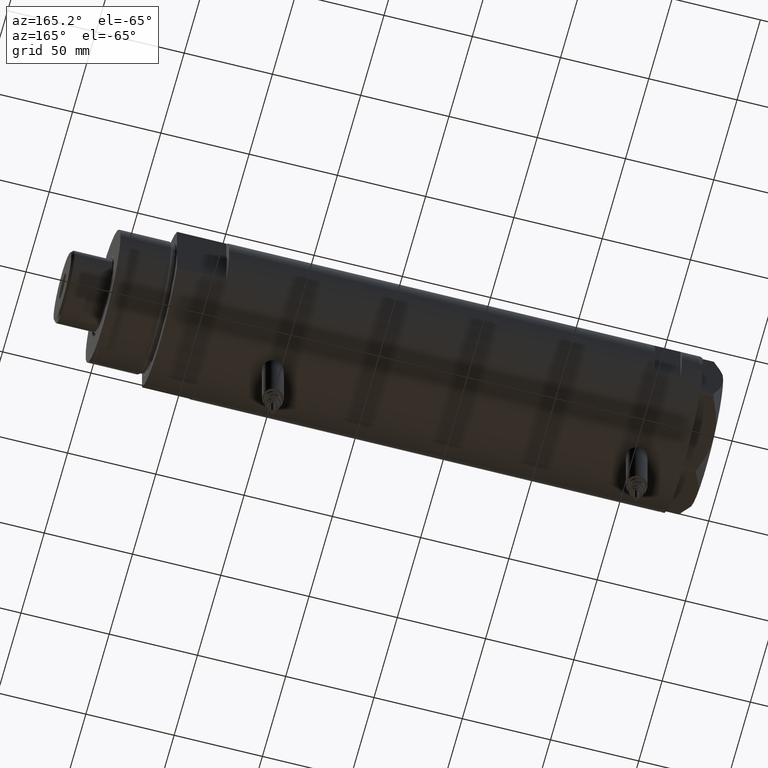
[diagram: clean part render]
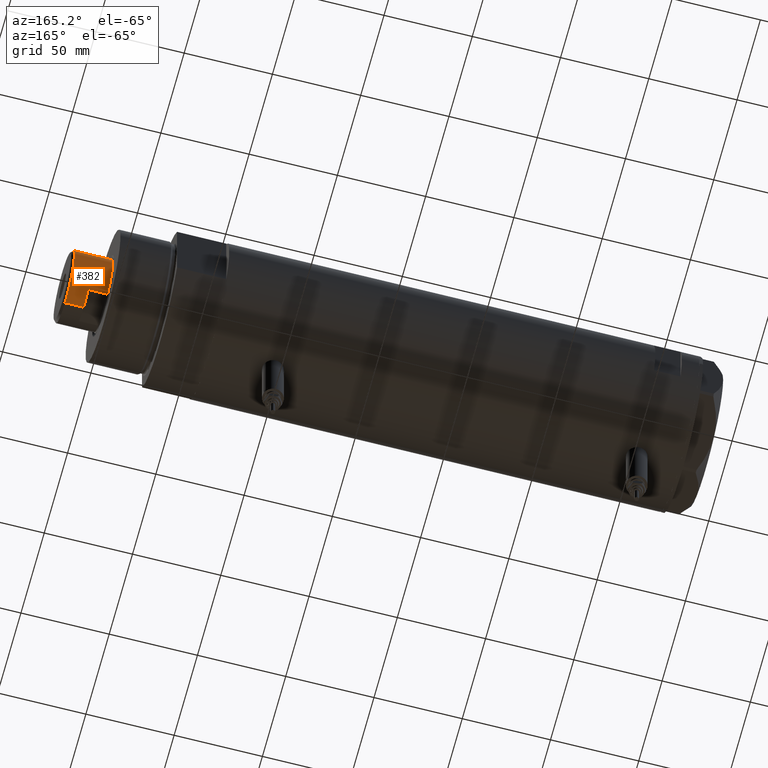
[diagram: same view with one face highlighted and labeled with its STEP entity id]
A machine part, auxiliary view. The second image highlights one B-rep face of the part: STEP entity #382.
In plain terms, the highlighted cylindrical surface (partial cylindrical patch) has radius 20.5 mm, axis along (-1, -0, 0).
Its self-contained STEP definition (entity closure, byte-faithful):
#221 = CARTESIAN_POINT ( 'NONE',  ( -20.50000000000000000, 0.000000000000000000, 311.3000000000000114 ) ) ;
#382 = ADVANCED_FACE ( 'NONE', ( #5927 ), #727, .T. ) ;
#384 = EDGE_CURVE ( 'NONE', #3918, #517, #4501, .T. ) ;
#401 = VECTOR ( 'NONE', #3118, 1000.000000000000000 ) ;
#409 = CARTESIAN_POINT ( 'NONE',  ( 20.50000000000000355, 2.510525938252074481E-15, 321.9000000000000909 ) ) ;
#484 = VERTEX_POINT ( 'NONE', #5895 ) ;
#517 = VERTEX_POINT ( 'NONE', #1660 ) ;
#539 = DIRECTION ( 'NONE',  ( 1.000000000000000000, 0.000000000000000000, 0.000000000000000000 ) ) ;
#690 = EDGE_CURVE ( 'NONE', #3674, #4470, #2450, .T. ) ;
#727 = CYLINDRICAL_SURFACE ( 'NONE', #2049, 20.50000000000000355 ) ;
#738 = ORIENTED_EDGE ( 'NONE', *, *, #5622, .F. ) ;
#752 = EDGE_LOOP ( 'NONE', ( #5594, #4460, #5274, #4856, #1556, #738, #5767, #2223 ) ) ;
#835 = DIRECTION ( 'NONE',  ( 0.000000000000000000, 0.000000000000000000, 1.000000000000000000 ) ) ;
#1249 = EDGE_CURVE ( 'NONE', #484, #2320, #2851, .T. ) ;
#1309 = CIRCLE ( 'NONE', #4434, 20.50000000000000000 ) ;
#1355 = CARTESIAN_POINT ( 'NONE',  ( 0.000000000000000000, 0.000000000000000000, 321.9000000000000909 ) ) ;
#1370 = DIRECTION ( 'NONE',  ( -0.000000000000000000, -0.000000000000000000, -1.000000000000000000 ) ) ;
#1384 = CARTESIAN_POINT ( 'NONE',  ( 0.000000000000000000, 0.000000000000000000, 311.3000000000000114 ) ) ;
#1556 = ORIENTED_EDGE ( 'NONE', *, *, #1249, .T. ) ;
#1564 = DIRECTION ( 'NONE',  ( -0.000000000000000000, -0.000000000000000000, -1.000000000000000000 ) ) ;
#1660 = CARTESIAN_POINT ( 'NONE',  ( 20.50000000000000000, 2.510525938252074481E-15, 311.3000000000000114 ) ) ;
#1696 = AXIS2_PLACEMENT_3D ( 'NONE', #1355, #2327, #1928 ) ;
#1714 = CARTESIAN_POINT ( 'NONE',  ( 0.000000000000000000, 0.000000000000000000, 311.3000000000000114 ) ) ;
#1763 = VERTEX_POINT ( 'NONE', #1982 ) ;
#1783 = VECTOR ( 'NONE', #4459, 1000.000000000000000 ) ;
#1828 = CARTESIAN_POINT ( 'NONE',  ( -20.50000000000000355, 0.000000000000000000, 311.3000000000000114 ) ) ;
#1928 = DIRECTION ( 'NONE',  ( 1.000000000000000000, 0.000000000000000000, 0.000000000000000000 ) ) ;
#1982 = CARTESIAN_POINT ( 'NONE',  ( -20.50000000000000355, 0.000000000000000000, 321.9000000000000909 ) ) ;
#2046 = EDGE_CURVE ( 'NONE', #4126, #484, #4016, .T. ) ;
#2049 = AXIS2_PLACEMENT_3D ( 'NONE', #5035, #2722, #4597 ) ;
#2223 = ORIENTED_EDGE ( 'NONE', *, *, #4378, .F. ) ;
#2320 = VERTEX_POINT ( 'NONE', #3861 ) ;
#2327 = DIRECTION ( 'NONE',  ( 0.000000000000000000, 0.000000000000000000, -1.000000000000000000 ) ) ;
#2379 = CIRCLE ( 'NONE', #1696, 20.50000000000000355 ) ;
#2450 = CIRCLE ( 'NONE', #2732, 20.50000000000000000 ) ;
#2488 = LINE ( 'NONE', #3870, #4303 ) ;
#2722 = DIRECTION ( 'NONE',  ( -0.000000000000000000, -0.000000000000000000, -1.000000000000000000 ) ) ;
#2732 = AXIS2_PLACEMENT_3D ( 'NONE', #1384, #5604, #5152 ) ;
#2851 = CIRCLE ( 'NONE', #3812, 20.49999999999998934 ) ;
#3118 = DIRECTION ( 'NONE',  ( -0.000000000000000000, -0.000000000000000000, -1.000000000000000000 ) ) ;
#3547 = EDGE_CURVE ( 'NONE', #1763, #3918, #2379, .T. ) ;
#3560 = CARTESIAN_POINT ( 'NONE',  ( 17.97852886083842705, 9.849999999999997868, 311.3000000000000114 ) ) ;
#3674 = VERTEX_POINT ( 'NONE', #5219 ) ;
#3812 = AXIS2_PLACEMENT_3D ( 'NONE', #5125, #5216, #539 ) ;
#3861 = CARTESIAN_POINT ( 'NONE',  ( -17.97852886083842705, 9.849999999999965894, 300.3000000000000114 ) ) ;
#3870 = CARTESIAN_POINT ( 'NONE',  ( -17.97852886083842705, 9.849999999999997868, 311.3000000000000114 ) ) ;
#3918 = VERTEX_POINT ( 'NONE', #409 ) ;
#3935 = DIRECTION ( 'NONE',  ( 1.000000000000000000, 0.000000000000000000, 0.000000000000000000 ) ) ;
#4016 = LINE ( 'NONE', #3560, #1783 ) ;
#4066 = EDGE_CURVE ( 'NONE', #517, #4126, #1309, .T. ) ;
#4083 = CARTESIAN_POINT ( 'NONE',  ( 17.97852886083842705, 9.849999999999997868, 311.3000000000000114 ) ) ;
#4126 = VERTEX_POINT ( 'NONE', #4083 ) ;
#4148 = LINE ( 'NONE', #1828, #5753 ) ;
#4303 = VECTOR ( 'NONE', #1564, 1000.000000000000000 ) ;
#4378 = EDGE_CURVE ( 'NONE', #1763, #4470, #4148, .T. ) ;
#4434 = AXIS2_PLACEMENT_3D ( 'NONE', #1714, #835, #3935 ) ;
#4459 = DIRECTION ( 'NONE',  ( -0.000000000000000000, -0.000000000000000000, -1.000000000000000000 ) ) ;
#4460 = ORIENTED_EDGE ( 'NONE', *, *, #384, .T. ) ;
#4470 = VERTEX_POINT ( 'NONE', #221 ) ;
#4501 = LINE ( 'NONE', #5870, #401 ) ;
#4597 = DIRECTION ( 'NONE',  ( -1.000000000000000000, 0.000000000000000000, 0.000000000000000000 ) ) ;
#4856 = ORIENTED_EDGE ( 'NONE', *, *, #2046, .T. ) ;
#5035 = CARTESIAN_POINT ( 'NONE',  ( 0.000000000000000000, 0.000000000000000000, 311.3000000000000114 ) ) ;
#5125 = CARTESIAN_POINT ( 'NONE',  ( 0.000000000000000000, 0.000000000000000000, 300.3000000000000114 ) ) ;
#5152 = DIRECTION ( 'NONE',  ( 1.000000000000000000, 0.000000000000000000, 0.000000000000000000 ) ) ;
#5216 = DIRECTION ( 'NONE',  ( 0.000000000000000000, 0.000000000000000000, 1.000000000000000000 ) ) ;
#5219 = CARTESIAN_POINT ( 'NONE',  ( -17.97852886083842705, 9.849999999999997868, 311.3000000000000114 ) ) ;
#5274 = ORIENTED_EDGE ( 'NONE', *, *, #4066, .T. ) ;
#5594 = ORIENTED_EDGE ( 'NONE', *, *, #3547, .T. ) ;
#5604 = DIRECTION ( 'NONE',  ( 0.000000000000000000, 0.000000000000000000, 1.000000000000000000 ) ) ;
#5622 = EDGE_CURVE ( 'NONE', #3674, #2320, #2488, .T. ) ;
#5753 = VECTOR ( 'NONE', #1370, 1000.000000000000000 ) ;
#5767 = ORIENTED_EDGE ( 'NONE', *, *, #690, .T. ) ;
#5870 = CARTESIAN_POINT ( 'NONE',  ( 20.50000000000000355, 2.510525938252074481E-15, 311.3000000000000114 ) ) ;
#5895 = CARTESIAN_POINT ( 'NONE',  ( 17.97852886083842705, 9.849999999999997868, 300.3000000000000114 ) ) ;
#5927 = FACE_OUTER_BOUND ( 'NONE', #752, .T. ) ;